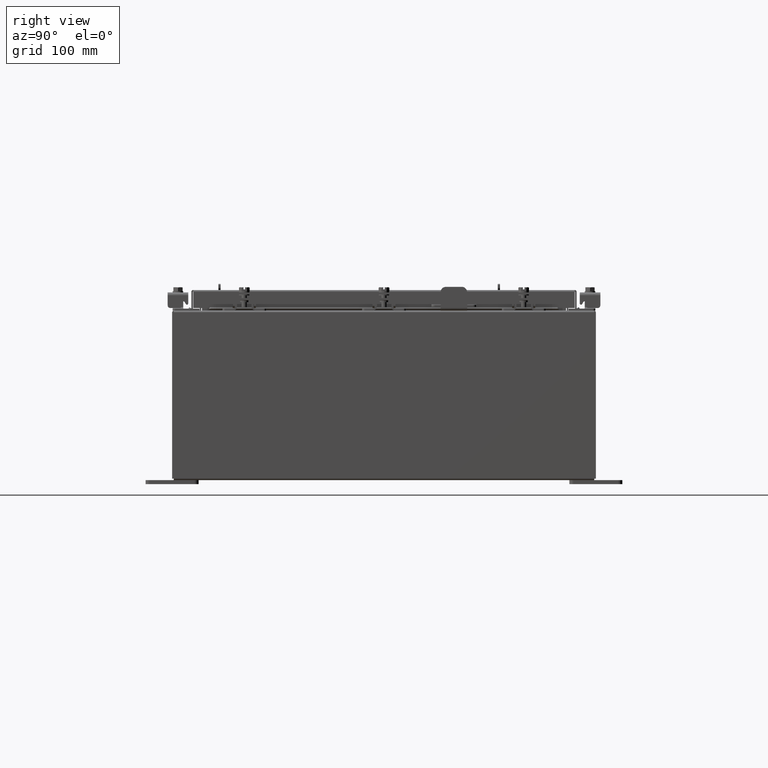
[diagram: clean part render]
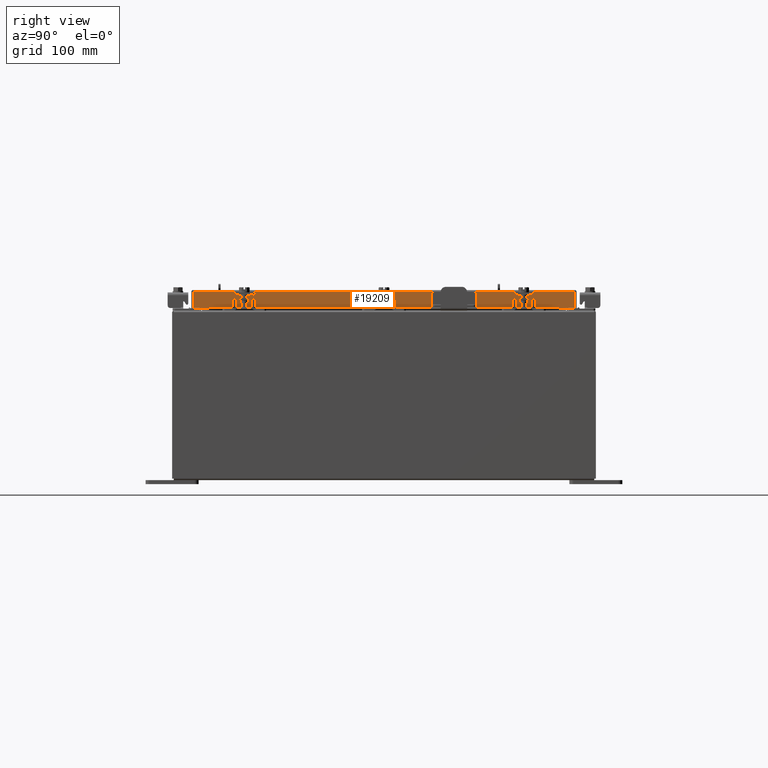
[diagram: same view with one face highlighted and labeled with its STEP entity id]
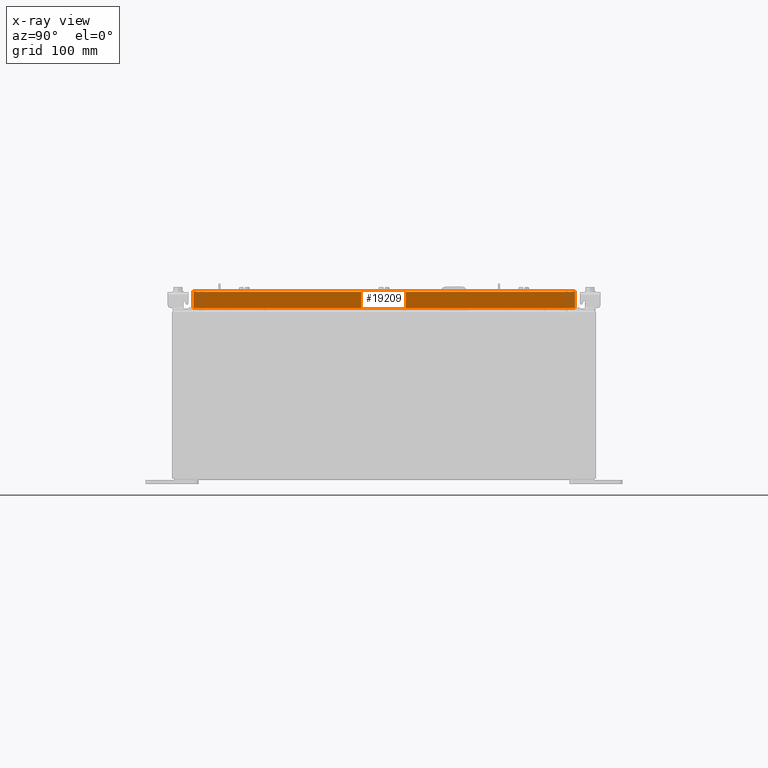
[diagram: x-ray of the same camera — body ghosted, the highlighted face saturated]
A machine part, right view. The second image highlights one B-rep face of the part: STEP entity #19209.
The next image is the same camera in x-ray: the body ghosted, the highlighted face saturated — about 0% of this face is hidden behind the body in this view.
In plain terms, the highlighted planar face has unit normal (1, 0, 0).
Its self-contained STEP definition (entity closure, byte-faithful):
#72 = EDGE_CURVE ( 'NONE', #15106, #19024, #8580, .T. ) ;
#338 = VECTOR ( 'NONE', #14196, 39.37007874015748100 ) ;
#1502 = DIRECTION ( 'NONE',  ( -2.818880942772360100E-015, -6.982962677686267500E-015, 1.000000000000000000 ) ) ;
#1798 = LINE ( 'NONE', #11777, #10573 ) ;
#2487 = EDGE_CURVE ( 'NONE', #19024, #17567, #9851, .T. ) ;
#3256 = CARTESIAN_POINT ( 'NONE',  ( 11.07800000000000300, -9.005157864376267100, -0.07469999999999978000 ) ) ;
#3327 = VECTOR ( 'NONE', #3861, 39.37007874015748100 ) ;
#3482 = FACE_OUTER_BOUND ( 'NONE', #22433, .T. ) ;
#3861 = DIRECTION ( 'NONE',  ( -2.818880942772360100E-015, -6.982962677686267500E-015, 1.000000000000000000 ) ) ;
#4223 = ORIENTED_EDGE ( 'NONE', *, *, #2487, .F. ) ;
#5078 = DIRECTION ( 'NONE',  ( 0.0000000000000000000, -1.000000000000000000, 0.0000000000000000000 ) ) ;
#5488 = LINE ( 'NONE', #3256, #9561 ) ;
#6171 = CARTESIAN_POINT ( 'NONE',  ( 11.07800000000000300, 8.255157864376267100, -0.8500000000000024200 ) ) ;
#6751 = EDGE_CURVE ( 'NONE', #18771, #13478, #18240, .T. ) ;
#7723 = PLANE ( 'NONE',  #21543 ) ;
#8580 = LINE ( 'NONE', #12611, #338 ) ;
#9495 = DIRECTION ( 'NONE',  ( 1.000000000000000000, 0.0000000000000000000, 2.818880942772360100E-015 ) ) ;
#9561 = VECTOR ( 'NONE', #1502, 39.37007874015748100 ) ;
#9851 = LINE ( 'NONE', #6171, #18501 ) ;
#9971 = ORIENTED_EDGE ( 'NONE', *, *, #6751, .T. ) ;
#10067 = ORIENTED_EDGE ( 'NONE', *, *, #18460, .T. ) ;
#10237 = ORIENTED_EDGE ( 'NONE', *, *, #11613, .F. ) ;
#10573 = VECTOR ( 'NONE', #22126, 39.37007874015748100 ) ;
#11613 = EDGE_CURVE ( 'NONE', #14135, #13478, #5488, .T. ) ;
#11643 = CARTESIAN_POINT ( 'NONE',  ( 11.07800000000000300, 9.005157864376270600, -0.08770000000000007000 ) ) ;
#11777 = CARTESIAN_POINT ( 'NONE',  ( 11.07800000000000500, -9.094000000000003000, -0.8499999999999996400 ) ) ;
#12611 = CARTESIAN_POINT ( 'NONE',  ( 11.07800000000000500, -9.094000000000003000, -0.8499999999999996400 ) ) ;
#13054 = CARTESIAN_POINT ( 'NONE',  ( 11.07800000000000500, -9.005157864376261800, -0.8499999999999996400 ) ) ;
#13478 = VERTEX_POINT ( 'NONE', #21698 ) ;
#13731 = CARTESIAN_POINT ( 'NONE',  ( 11.07800000000000300, 0.0000000000000000000, -0.08770000000000007000 ) ) ;
#13948 = CARTESIAN_POINT ( 'NONE',  ( 11.07800000000000300, 8.255157864376267100, -0.8500000000000024200 ) ) ;
#14135 = VERTEX_POINT ( 'NONE', #13054 ) ;
#14196 = DIRECTION ( 'NONE',  ( 0.0000000000000000000, -1.000000000000000000, 0.0000000000000000000 ) ) ;
#14320 = EDGE_CURVE ( 'NONE', #17567, #14135, #1798, .T. ) ;
#14453 = ORIENTED_EDGE ( 'NONE', *, *, #14320, .F. ) ;
#14629 = CARTESIAN_POINT ( 'NONE',  ( 11.07800000000000300, 0.0000000000000000000, 3.148837674004379600E-014 ) ) ;
#15106 = VERTEX_POINT ( 'NONE', #15259 ) ;
#15259 = CARTESIAN_POINT ( 'NONE',  ( 11.07800000000000500, 9.005157864376274200, -0.8499999999999996400 ) ) ;
#15793 = ORIENTED_EDGE ( 'NONE', *, *, #72, .F. ) ;
#16016 = CARTESIAN_POINT ( 'NONE',  ( 11.07800000000000300, 9.005157864376268900, 9.437105801365626000E-014 ) ) ;
#16762 = CARTESIAN_POINT ( 'NONE',  ( 11.07800000000000300, -8.255157864376263500, -0.8500000000000024200 ) ) ;
#17567 = VERTEX_POINT ( 'NONE', #16762 ) ;
#17744 = LINE ( 'NONE', #16016, #3327 ) ;
#18240 = LINE ( 'NONE', #13731, #22321 ) ;
#18460 = EDGE_CURVE ( 'NONE', #15106, #18771, #17744, .T. ) ;
#18501 = VECTOR ( 'NONE', #21574, 39.37007874015748100 ) ;
#18771 = VERTEX_POINT ( 'NONE', #11643 ) ;
#19024 = VERTEX_POINT ( 'NONE', #13948 ) ;
#19209 = ADVANCED_FACE ( 'NONE', ( #3482 ), #7723, .T. ) ;
#21543 = AXIS2_PLACEMENT_3D ( 'NONE', #14629, #9495, #21593 ) ;
#21574 = DIRECTION ( 'NONE',  ( 0.0000000000000000000, -1.000000000000000000, 0.0000000000000000000 ) ) ;
#21593 = DIRECTION ( 'NONE',  ( 2.818880942772360100E-015, 0.0000000000000000000, -1.000000000000000000 ) ) ;
#21698 = CARTESIAN_POINT ( 'NONE',  ( 11.07800000000000300, -9.005157864376267100, -0.08770000000000007000 ) ) ;
#22126 = DIRECTION ( 'NONE',  ( 0.0000000000000000000, -1.000000000000000000, 0.0000000000000000000 ) ) ;
#22321 = VECTOR ( 'NONE', #5078, 39.37007874015748100 ) ;
#22433 = EDGE_LOOP ( 'NONE', ( #10237, #14453, #4223, #15793, #10067, #9971 ) ) ;